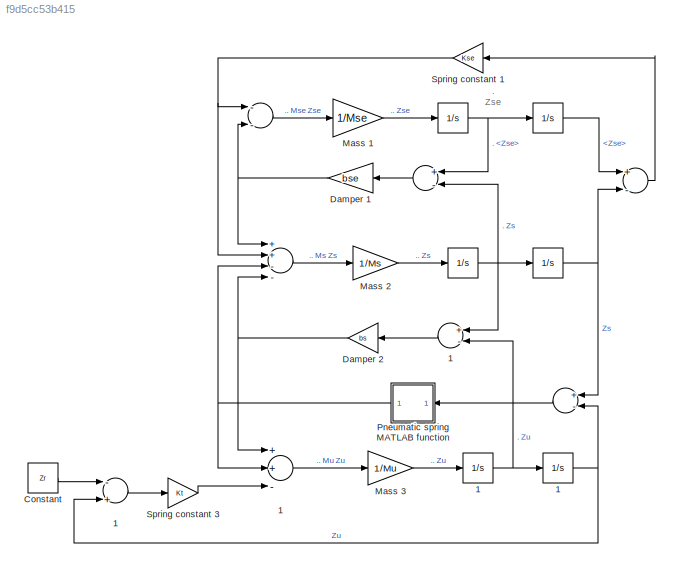
MODEL slx_f9d5cc53b415
KIND model
CONFIG AbsTol = auto
CONFIG EnableMultiTasking = off
CONFIG FixedStep = 0.00000001
CONFIG MaxStep = auto
CONFIG MinStep = auto
CONFIG RelTol = 1e-3
CONFIG SampleTimeConstraint = Unconstrained
CONFIG Solver = VariableStepAuto
CONFIG SolverName = VariableStepAuto
CONFIG StartTime = 0.0
CONFIG StopTime = 10.0
BLOCK [Integrator]  
  Ports = [1, 1]
BLOCK [Sum]   
  InputSameDT = off
  Inputs = +-
  OutDataTypeStr = Inherit: Inherit via internal rule
  Ports = [2, 1]
  SaturateOnIntegerOverflow = off
BLOCK [Integrator]      
  Ports = [1, 1]
BLOCK [Sum]       
  InputSameDT = off
  Inputs = ++--
  OutDataTypeStr = Inherit: Inherit via internal rule
  Ports = [4, 1]
  SaturateOnIntegerOverflow = off
BLOCK [Sum]        
  InputSameDT = off
  Inputs = --
  OutDataTypeStr = Inherit: Inherit via internal rule
  Ports = [2, 1]
  SaturateOnIntegerOverflow = off
BLOCK [Sum]         
  InputSameDT = off
  Inputs = +-
  OutDataTypeStr = Inherit: Inherit via internal rule
  Ports = [2, 1]
  SaturateOnIntegerOverflow = off
BLOCK [Integrator]          
  Ports = [1, 1]
BLOCK [Integrator]           
  Ports = [1, 1]
BLOCK [Sum]              
  InputSameDT = off
  Inputs = +-
  OutDataTypeStr = Inherit: Inherit via internal rule
  Ports = [2, 1]
  SaturateOnIntegerOverflow = off
BLOCK [Sum]              1
  InputSameDT = off
  Inputs = +-
  OutDataTypeStr = Inherit: Inherit via internal rule
  Ports = [2, 1]
  SaturateOnIntegerOverflow = off
BLOCK [Integrator]           1
  Ports = [1, 1]
BLOCK [Integrator]          1
  Ports = [1, 1]
BLOCK [Sum]        1
  InputSameDT = off
  Inputs = -+
  OutDataTypeStr = Inherit: Inherit via internal rule
  Ports = [2, 1]
  SaturateOnIntegerOverflow = off
BLOCK [Sum]       1
  InputSameDT = off
  Inputs = ++-
  OutDataTypeStr = Inherit: Inherit via internal rule
  Ports = [3, 1]
  SaturateOnIntegerOverflow = off
BLOCK [Constant] Constant
  Value = Zr
BLOCK [Gain] Damper 1
  Gain = bse
  OutDataTypeStr = Inherit: Inherit via internal rule
  ParamDataTypeStr = Inherit: Inherit via internal rule
  SaturateOnIntegerOverflow = off
BLOCK [Gain] Damper 2
  Gain = bs
  OutDataTypeStr = Inherit: Inherit via internal rule
  ParamDataTypeStr = Inherit: Inherit via internal rule
  SaturateOnIntegerOverflow = off
BLOCK [Gain] Mass 1
  Gain = 1/Mse
  OutDataTypeStr = Inherit: Inherit via internal rule
  ParamDataTypeStr = Inherit: Inherit via internal rule
  SaturateOnIntegerOverflow = off
BLOCK [Gain] Mass 2
  Gain = 1/Ms
  OutDataTypeStr = Inherit: Inherit via internal rule
  ParamDataTypeStr = Inherit: Inherit via internal rule
  SaturateOnIntegerOverflow = off
BLOCK [Gain] Mass 3
  Gain = 1/Mu
  OutDataTypeStr = Inherit: Inherit via internal rule
  ParamDataTypeStr = Inherit: Inherit via internal rule
  SaturateOnIntegerOverflow = off
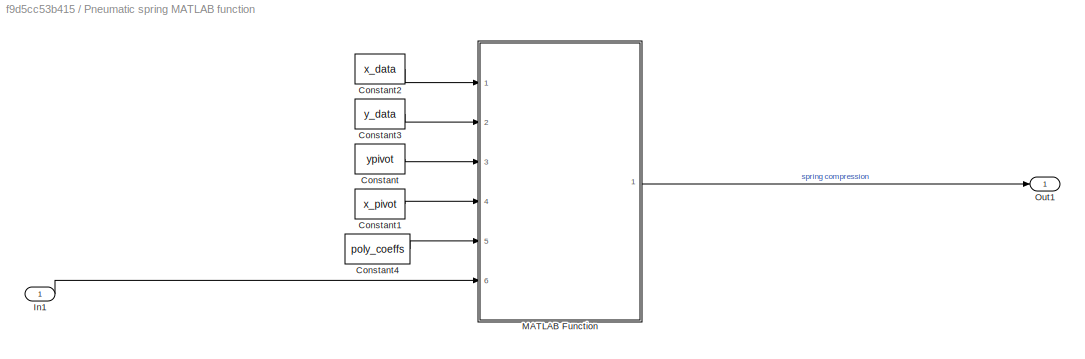
BLOCK [SubSystem] Pneumatic spring MATLAB function
  Ports = [1, 1]
  RequestExecContextInheritance = off
BLOCK [Constant] Pneumatic spring MATLAB function/Constant
  Value = ypivot
  VectorParams1D = off
BLOCK [Constant] Pneumatic spring MATLAB function/Constant1
  Value = x_pivot
  VectorParams1D = off
BLOCK [Constant] Pneumatic spring MATLAB function/Constant2
  Value = x_data
  VectorParams1D = off
BLOCK [Constant] Pneumatic spring MATLAB function/Constant3
  Value = y_data
  VectorParams1D = off
BLOCK [Constant] Pneumatic spring MATLAB function/Constant4
  Value = poly_coeffs
  VectorParams1D = off
BLOCK [Inport] Pneumatic spring MATLAB function/In1
  IconDisplay = Port number
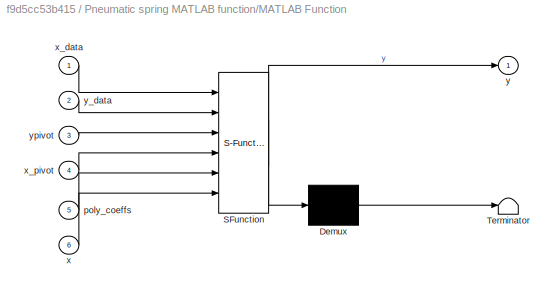
BLOCK [SubSystem] Pneumatic spring MATLAB function/MATLAB Function
  ErrorFcn = Stateflow.Translate.translate
  PermitHierarchicalResolution = ExplicitOnly
  Ports = [6, 1]
  RequestExecContextInheritance = off
  SFBlockType = MATLAB Function
  TreatAsAtomicUnit = on
BLOCK [Demux] Pneumatic spring MATLAB function/MATLAB Function/ Demux 
  Outputs = 1
  Ports = [1, 1]
BLOCK [S-Function] Pneumatic spring MATLAB function/MATLAB Function/ SFunction 
  EnableBusSupport = on
  FunctionName = sf_sfun
  PortCounts = [6 2]
  Ports = [6, 2]
  SFcnIsStateOwnerBlock = off
  SFunctionDeploymentMode = off
  Tag = Stateflow S-Function Full_model_M_function_spring_stiffness 2
BLOCK [Terminator] Pneumatic spring MATLAB function/MATLAB Function/ Terminator 
BLOCK [Inport] Pneumatic spring MATLAB function/MATLAB Function/poly_coeffs
  IconDisplay = Port number
  Port = 5
BLOCK [Inport] Pneumatic spring MATLAB function/MATLAB Function/x
  IconDisplay = Port number
  Port = 6
BLOCK [Inport] Pneumatic spring MATLAB function/MATLAB Function/x_data
  IconDisplay = Port number
BLOCK [Inport] Pneumatic spring MATLAB function/MATLAB Function/x_pivot
  IconDisplay = Port number
  Port = 4
BLOCK [Outport] Pneumatic spring MATLAB function/MATLAB Function/y
  IconDisplay = Port number
BLOCK [Inport] Pneumatic spring MATLAB function/MATLAB Function/y_data
  IconDisplay = Port number
  Port = 2
BLOCK [Inport] Pneumatic spring MATLAB function/MATLAB Function/ypivot
  IconDisplay = Port number
  Port = 3
BLOCK [Outport] Pneumatic spring MATLAB function/Out1
  IconDisplay = Port number
BLOCK [Gain] Spring constant 1
  Gain = Kse
  OutDataTypeStr = Inherit: Inherit via internal rule
  ParamDataTypeStr = Inherit: Inherit via internal rule
  SaturateOnIntegerOverflow = off
BLOCK [Gain] Spring constant 3
  Gain = Kt
  OutDataTypeStr = Inherit: Inherit via internal rule
  ParamDataTypeStr = Inherit: Inherit via internal rule
  SaturateOnIntegerOverflow = off
ANNOTATION (root): . Zse
LINE              1:1 -> Damper 2:1
LINE              :1 -> Pneumatic spring MATLAB function:1
NET           1:1 ->              :2,        1:2
NET           :1 ->              :1,   :2
NET          1:1 ->              1:2,           1:1
NET          :1 ->              1:1,           :1,         :2
LINE         :1 -> Damper 1:1
LINE        1:1 -> Spring constant 3:1
LINE        :1 -> Mass 1:1
LINE       1:1 -> Mass 3:1
LINE       :1 -> Mass 2:1
LINE      :1 ->   :1
LINE   :1 -> Spring constant 1:1
NET  :1 ->         :1,      :1
LINE Constant:1 ->        1:1
NET Damper 1:1 ->        :2,       :1
NET Damper 2:1 ->       1:1,       :4
LINE Mass 1:1 ->  :1
LINE Mass 2:1 ->          :1
LINE Mass 3:1 ->          1:1
LINE Pneumatic spring MATLAB function/Constant1:1 -> Pneumatic spring MATLAB function/MATLAB Function:4
LINE Pneumatic spring MATLAB function/Constant2:1 -> Pneumatic spring MATLAB function/MATLAB Function:1
LINE Pneumatic spring MATLAB function/Constant3:1 -> Pneumatic spring MATLAB function/MATLAB Function:2
LINE Pneumatic spring MATLAB function/Constant4:1 -> Pneumatic spring MATLAB function/MATLAB Function:5
LINE Pneumatic spring MATLAB function/Constant:1 -> Pneumatic spring MATLAB function/MATLAB Function:3
LINE Pneumatic spring MATLAB function/In1:1 -> Pneumatic spring MATLAB function/MATLAB Function:6
LINE Pneumatic spring MATLAB function/MATLAB Function:1 -> Pneumatic spring MATLAB function/Out1:1
NET Pneumatic spring MATLAB function:1 ->       1:2,       :3
NET Spring constant 1:1 ->        :1,       :2
LINE Spring constant 3:1 ->       1:3
note: NET lines group one-source signal fan-out (src -> all destinations, sorted); 1:1 wires keep LINE
CHART Pneumatic spring MATLAB function/MATLAB Function states=1 transitions=1
  STATE_LABEL 'eML_blk_kernel()'
  STATE_LABEL 'SCRIPT:\nfunction y = poly_limited(x_data, y_data, ypivot, x_pivot, poly_coeffs, x)\n% Polynomial region\nypoly = polyval(poly_coeffs, x);\ny1 = interp1(x_data, y_data, x_pivot);\ny2 = interp1(x_data, y_data, x_pivot-0.01);\ndfdx = (y2 -y1) / 0.01;\n\nif x < 0\n    y = 0;\nelseif x <= x_pivot\n    y = ypoly;\nelse\n    y = ypivot + dfdx * (x - x_pivot);  % Linear extrapolation\nend\n'
